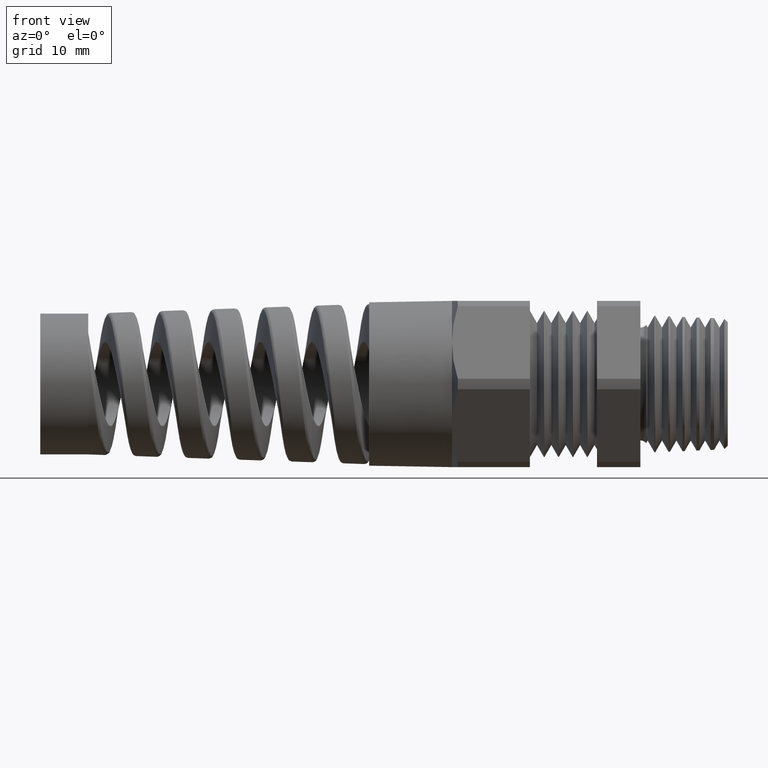
[diagram: clean part render]
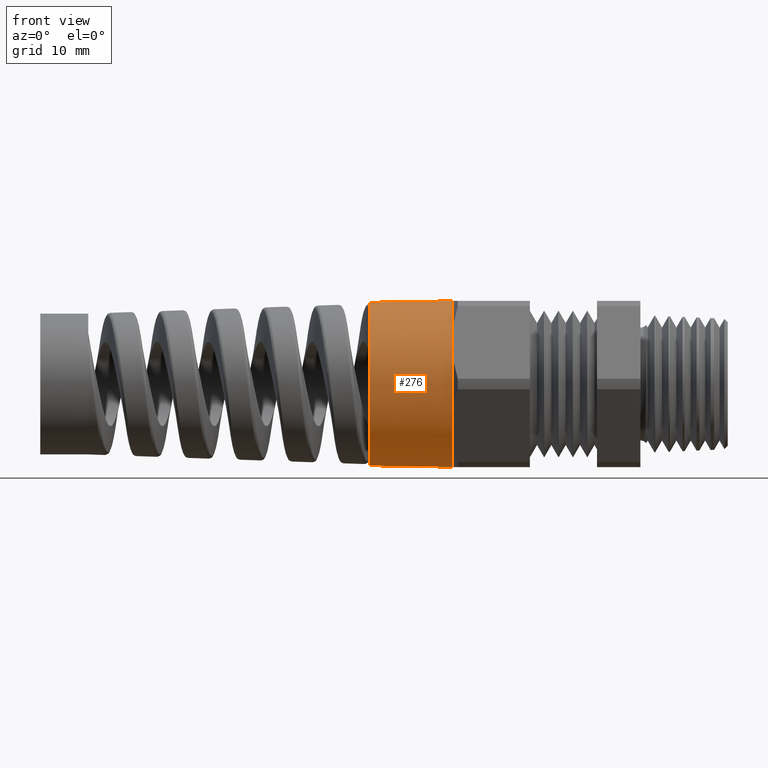
[diagram: same view with one face highlighted and labeled with its STEP entity id]
A machine part, front view. The second image highlights one B-rep face of the part: STEP entity #276.
In plain terms, the highlighted conical surface has half-angle 1 deg.
Its self-contained STEP definition (entity closure, byte-faithful):
#118 = EDGE_CURVE ( 'NONE', #9482, #9630, #5860, .T. ) ;
#270 = ORIENTED_EDGE ( 'NONE', *, *, #473, .F. ) ;
#276 = ADVANCED_FACE ( 'NONE', ( #7785 ), #7784, .T. ) ;
#402 = VERTEX_POINT ( 'NONE', #8127 ) ;
#465 = VERTEX_POINT ( 'NONE', #8387 ) ;
#469 = ORIENTED_EDGE ( 'NONE', *, *, #470, .T. ) ;
#470 = EDGE_CURVE ( 'NONE', #402, #465, #8382, .T. ) ;
#471 = VERTEX_POINT ( 'NONE', #8378 ) ;
#473 = EDGE_CURVE ( 'NONE', #402, #471, #8377, .T. ) ;
#489 = ORIENTED_EDGE ( 'NONE', *, *, #118, .T. ) ;
#1064 = DIRECTION ( 'NONE',  ( 0.0000000000000000000, 0.0000000000000000000, 1.000000000000000000 ) ) ;
#1065 = DIRECTION ( 'NONE',  ( -1.000000000000000000, 0.0000000000000000000, 0.0000000000000000000 ) ) ;
#1066 = CARTESIAN_POINT ( 'NONE',  ( -0.6687500000000000700, 0.0000000000000000000, 0.0000000000000000000 ) ) ;
#1067 = AXIS2_PLACEMENT_3D ( 'NONE', #1066, #1065, #1064 ) ;
#1068 = CARTESIAN_POINT ( 'NONE',  ( -0.6687500000000000700, -0.2554774941164094600, 0.1475000000000001300 ) ) ;
#1111 = CIRCLE ( 'NONE', #1067, 0.2949999999999997100 ) ;
#1117 = DIRECTION ( 'NONE',  ( 0.0000000000000000000, 0.0000000000000000000, 1.000000000000000000 ) ) ;
#1118 = DIRECTION ( 'NONE',  ( -1.000000000000000000, 0.0000000000000000000, 0.0000000000000000000 ) ) ;
#1119 = CARTESIAN_POINT ( 'NONE',  ( -0.6687500000000000700, 0.0000000000000000000, 0.0000000000000000000 ) ) ;
#1120 = AXIS2_PLACEMENT_3D ( 'NONE', #1119, #1118, #1117 ) ;
#1121 = CIRCLE ( 'NONE', #1120, 0.2949999999999997100 ) ;
#1135 = CARTESIAN_POINT ( 'NONE',  ( -0.6687500000000000700, -0.2554774941164094100, -0.1475000000000001300 ) ) ;
#2775 = CARTESIAN_POINT ( 'NONE',  ( -0.6687500000000000700, 0.0000000000000000000, 0.2949999999999997100 ) ) ;
#2866 = DIRECTION ( 'NONE',  ( 0.9998476951563912700, 0.0000000000000000000, 0.01745240643728355000 ) ) ;
#2867 = VECTOR ( 'NONE', #2866, 39.37007874015748100 ) ;
#2868 = CARTESIAN_POINT ( 'NONE',  ( -0.6687499999999999600, 0.0000000000000000000, 0.2949999999999997600 ) ) ;
#2901 = LINE ( 'NONE', #2868, #2867 ) ;
#5857 = DIRECTION ( 'NONE',  ( 0.0000000000000000000, 0.0000000000000000000, 1.000000000000000000 ) ) ;
#5858 = DIRECTION ( 'NONE',  ( -1.000000000000000000, 0.0000000000000000000, 0.0000000000000000000 ) ) ;
#5859 = AXIS2_PLACEMENT_3D ( 'NONE', #5864, #5858, #5857 ) ;
#5860 = CIRCLE ( 'NONE', #5859, 0.2949999999999997100 ) ;
#5864 = CARTESIAN_POINT ( 'NONE',  ( -0.6687500000000000700, 0.0000000000000000000, 0.0000000000000000000 ) ) ;
#7712 = CARTESIAN_POINT ( 'NONE',  ( -0.6687499999999999600, 0.0000000000000000000, 0.0000000000000000000 ) ) ;
#7779 = DIRECTION ( 'NONE',  ( 0.0000000000000000000, 0.0000000000000000000, 1.000000000000000000 ) ) ;
#7780 = DIRECTION ( 'NONE',  ( 1.000000000000000000, 0.0000000000000000000, 0.0000000000000000000 ) ) ;
#7781 = AXIS2_PLACEMENT_3D ( 'NONE', #7712, #7780, #7779 ) ;
#7784 = CONICAL_SURFACE ( 'NONE', #7781, 0.2949999999999997600, 0.01745329251994333400 ) ;
#7785 = FACE_OUTER_BOUND ( 'NONE', #9472, .T. ) ;
#8127 = CARTESIAN_POINT ( 'NONE',  ( -0.9626899999999999300, -3.581291324963428100E-017, -0.2898692582149995400 ) ) ;
#8373 = DIRECTION ( 'NONE',  ( 0.0000000000000000000, 0.0000000000000000000, 1.000000000000000000 ) ) ;
#8374 = DIRECTION ( 'NONE',  ( -1.000000000000000000, 0.0000000000000000000, 0.0000000000000000000 ) ) ;
#8375 = CARTESIAN_POINT ( 'NONE',  ( -0.9626899999999999300, 0.0000000000000000000, 0.0000000000000000000 ) ) ;
#8376 = AXIS2_PLACEMENT_3D ( 'NONE', #8375, #8374, #8373 ) ;
#8377 = CIRCLE ( 'NONE', #8376, 0.2898692582149995400 ) ;
#8378 = CARTESIAN_POINT ( 'NONE',  ( -0.9626899999999999300, 0.0000000000000000000, 0.2898692582149995400 ) ) ;
#8379 = DIRECTION ( 'NONE',  ( 0.9998476951563912700, -2.137303368083796300E-018, -0.01745240643728355000 ) ) ;
#8380 = VECTOR ( 'NONE', #8379, 39.37007874015748100 ) ;
#8381 = CARTESIAN_POINT ( 'NONE',  ( -0.6687499999999999600, -3.612708057484689500E-017, -0.2949999999999997600 ) ) ;
#8382 = LINE ( 'NONE', #8381, #8380 ) ;
#8387 = CARTESIAN_POINT ( 'NONE',  ( -0.6687500000000000700, 0.0000000000000000000, -0.2950000000000002600 ) ) ;
#9463 = ORIENTED_EDGE ( 'NONE', *, *, #9486, .T. ) ;
#9468 = VERTEX_POINT ( 'NONE', #1135 ) ;
#9472 = EDGE_LOOP ( 'NONE', ( #270, #469, #9463, #9478, #489, #9681 ) ) ;
#9478 = ORIENTED_EDGE ( 'NONE', *, *, #9479, .T. ) ;
#9479 = EDGE_CURVE ( 'NONE', #9468, #9482, #1121, .T. ) ;
#9482 = VERTEX_POINT ( 'NONE', #1068 ) ;
#9486 = EDGE_CURVE ( 'NONE', #465, #9468, #1111, .T. ) ;
#9630 = VERTEX_POINT ( 'NONE', #2775 ) ;
#9680 = EDGE_CURVE ( 'NONE', #471, #9630, #2901, .T. ) ;
#9681 = ORIENTED_EDGE ( 'NONE', *, *, #9680, .F. ) ;